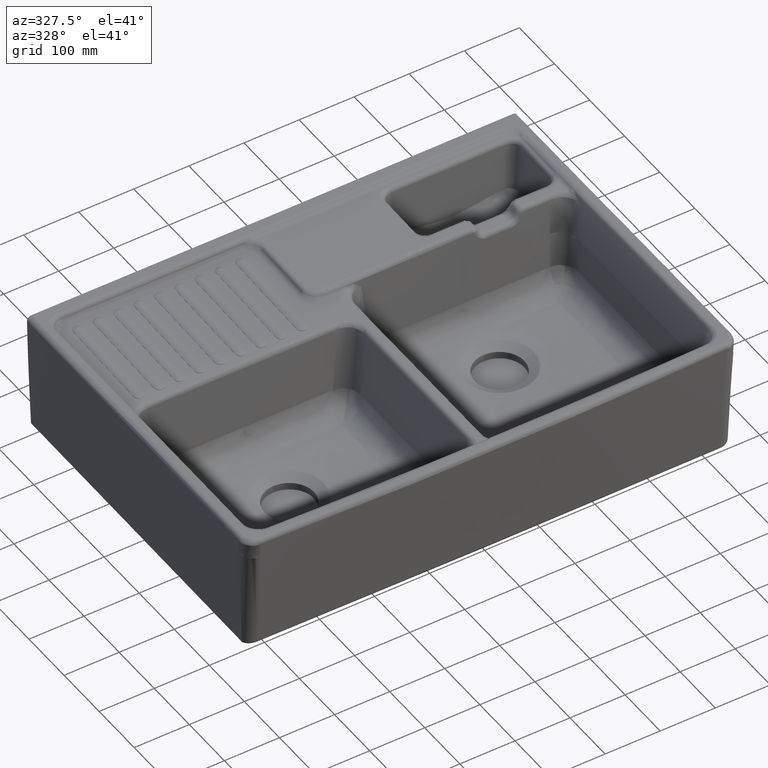
[diagram: clean part render]
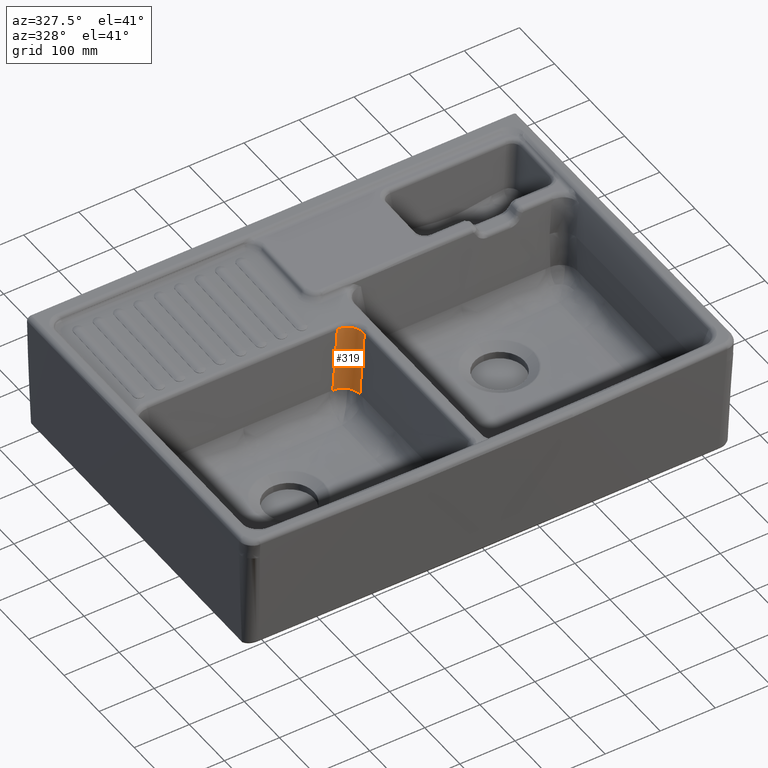
[diagram: same view with one face highlighted and labeled with its STEP entity id]
A machine part, auxiliary view. The second image highlights one B-rep face of the part: STEP entity #319.
In plain terms, the highlighted face is a freeform B-spline surface patch.
Its self-contained STEP definition (entity closure, byte-faithful):
#319=ADVANCED_FACE('',(#1178),#773,.T.);
#773=B_SPLINE_SURFACE_WITH_KNOTS('',3,3,((#18958,#18959,#18960,#18961),
(#18962,#18963,#18964,#18965),(#18966,#18967,#18968,#18969),(#18970,#18971,
#18972,#18973)),.UNSPECIFIED.,.F.,.F.,.F.,(4,4),(4,4),(0.,1.),(0.,1.),
 .UNSPECIFIED.);
#1178=FACE_OUTER_BOUND('',#1629,.T.);
#1629=EDGE_LOOP('',(#2679,#2680,#2681,#2682,#2683,#2684));
#2679=ORIENTED_EDGE('',*,*,#5537,.F.);
#2680=ORIENTED_EDGE('',*,*,#5535,.T.);
#2681=ORIENTED_EDGE('',*,*,#5510,.T.);
#2682=ORIENTED_EDGE('',*,*,#5538,.F.);
#2683=ORIENTED_EDGE('',*,*,#5495,.T.);
#2684=ORIENTED_EDGE('',*,*,#5539,.F.);
#4605=VERTEX_POINT('',#17971);
#4606=VERTEX_POINT('',#17972);
#4615=VERTEX_POINT('',#18199);
#4616=VERTEX_POINT('',#18204);
#4630=VERTEX_POINT('',#18896);
#4631=VERTEX_POINT('',#18928);
#5495=EDGE_CURVE('',#4605,#4606,#6690,.T.);
#5510=EDGE_CURVE('',#4616,#4615,#6705,.T.);
#5535=EDGE_CURVE('',#4630,#4616,#6730,.T.);
#5537=EDGE_CURVE('',#4630,#4631,#6732,.T.);
#5538=EDGE_CURVE('',#4605,#4615,#6733,.T.);
#5539=EDGE_CURVE('',#4631,#4606,#6734,.T.);
#6690=B_SPLINE_CURVE_WITH_KNOTS('',3,(#17956,#17957,#17958,#17959,#17960,
#17961,#17962,#17963,#17964,#17965,#17966,#17967,#17968,#17969,#17970),
 .UNSPECIFIED.,.F.,.F.,(4,2,2,2,1,1,1,2,4),(0.,0.5,0.749999999999999,0.874999999999999,
0.937499999999999,0.968749999999999,0.984374999999999,0.9921875,1.),
 .UNSPECIFIED.);
#6705=B_SPLINE_CURVE_WITH_KNOTS('',3,(#18200,#18201,#18202,#18203),
 .UNSPECIFIED.,.F.,.F.,(4,4),(0.,1.),.UNSPECIFIED.);
#6730=B_SPLINE_CURVE_WITH_KNOTS('',3,(#18892,#18893,#18894,#18895),
 .UNSPECIFIED.,.F.,.F.,(4,4),(0.,1.),.UNSPECIFIED.);
#6732=B_SPLINE_CURVE_WITH_KNOTS('',3,(#18924,#18925,#18926,#18927),
 .UNSPECIFIED.,.F.,.F.,(4,4),(0.,1.),.UNSPECIFIED.);
#6733=B_SPLINE_CURVE_WITH_KNOTS('',3,(#18929,#18930,#18931,#18932,#18933,
#18934,#18935,#18936,#18937,#18938,#18939,#18940,#18941,#18942,#18943,#18944,
#18945,#18946,#18947,#18948,#18949,#18950,#18951,#18952,#18953),
 .UNSPECIFIED.,.F.,.F.,(4,2,1,1,1,1,1,1,1,1,1,1,1,1,1,1,1,1,1,2,4),(0.,
0.000976562499999993,0.00195312499999999,0.00390624999999996,0.00781249999999983,
0.0156249999999997,0.0312499999999995,0.0624999999999995,0.124999999999999,
0.249999999999999,0.499999999999999,0.749999999999999,0.874999999999999,
0.937499999999999,0.968749999999999,0.984375,0.9921875,0.99609375,0.998046875,
0.9990234375,1.),.UNSPECIFIED.);
#6734=B_SPLINE_CURVE_WITH_KNOTS('',3,(#18954,#18955,#18956,#18957),
 .UNSPECIFIED.,.F.,.F.,(4,4),(0.,1.),.UNSPECIFIED.);
#17956=CARTESIAN_POINT('',(-11.9816618541531,24.5196525404761,-29.8552499752521));
#17957=CARTESIAN_POINT('',(-11.9631176926455,28.6276515578142,-29.7246262770236));
#17958=CARTESIAN_POINT('',(-12.7634699379411,32.4697937456265,-29.588011929685));
#17959=CARTESIAN_POINT('',(-14.8712600896982,37.6506893669688,-29.3990892218857));
#17960=CARTESIAN_POINT('',(-15.7255506101645,39.2810308250211,-29.338781407849));
#17961=CARTESIAN_POINT('',(-17.1985868818831,41.5623799171592,-29.2554324940351));
#17962=CARTESIAN_POINT('',(-17.721560677366,42.2954940896572,-29.2288348706643));
#17963=CARTESIAN_POINT('',(-18.5497212550908,43.3519790360296,-29.1911042471394));
#17964=CARTESIAN_POINT('',(-18.9747290792469,43.869427190551,-29.1727803718818));
#17965=CARTESIAN_POINT('',(-19.4887934678492,44.4537727294885,-29.1524346724839));
#17966=CARTESIAN_POINT('',(-19.7502704641983,44.7410545055455,-29.1425304263897));
#17967=CARTESIAN_POINT('',(-19.8632726791627,44.8631213443244,-29.138344438938));
#17968=CARTESIAN_POINT('',(-19.9388152142017,44.9442643862793,-29.1355669484181));
#17969=CARTESIAN_POINT('',(-19.9389593187087,44.9446466469244,-29.1355518065009));
#17970=CARTESIAN_POINT('',(-20.0149169926693,45.0253185531731,-29.1328002773995));
#17971=CARTESIAN_POINT('',(-11.9822460877944,24.5191564784086,-29.8551567258973));
#17972=CARTESIAN_POINT('',(-20.0149189975984,45.0253195176951,-29.1328000927668));
#18199=CARTESIAN_POINT('',(-25.4782996977863,16.0782760589866,-139.741500521571));
#18200=CARTESIAN_POINT('',(-34.4235641785402,37.3846714088545,-139.741706514232));
#18201=CARTESIAN_POINT('',(-28.7518832293266,31.8259727762333,-139.741450382458));
#18202=CARTESIAN_POINT('',(-25.4775541725458,24.2089491500503,-139.739827540752));
#18203=CARTESIAN_POINT('',(-25.4776878946513,16.0783075921577,-139.741224806561));
#18204=CARTESIAN_POINT('',(-34.4241405565794,37.3840934702988,-139.741467402368));
#18892=CARTESIAN_POINT('',(-55.4588470891157,45.9495770089479,-139.740802655105));
#18893=CARTESIAN_POINT('',(-46.9604158884011,45.949635894198,-139.739952513682));
#18894=CARTESIAN_POINT('',(-39.6374987116368,42.4948340456925,-139.741354926631));
#18895=CARTESIAN_POINT('',(-34.4235682538945,37.3846754030985,-139.741706513957));
#18896=CARTESIAN_POINT('',(-55.4590970530964,45.9490338628122,-139.740741436735));
#18924=CARTESIAN_POINT('',(-55.4588127051958,45.9486063881273,-139.740415337951));
#18925=CARTESIAN_POINT('',(-51.6153875817512,48.0779416224701,-102.827703204351));
#18926=CARTESIAN_POINT('',(-47.0621839387421,50.8665852014304,-65.9979462759032));
#18927=CARTESIAN_POINT('',(-41.7992017761685,54.3108029058694,-29.2508724763775));
#18928=CARTESIAN_POINT('',(-41.7992074686989,54.3113481982923,-29.2509463806587));
#18929=CARTESIAN_POINT('',(-11.9828266261929,24.5196559852972,-29.8550473634513));
#18930=CARTESIAN_POINT('',(-11.9929838309352,24.5128729024143,-29.9264967199078));
#18931=CARTESIAN_POINT('',(-11.9931508997496,24.5127614658831,-29.927676914676));
#18932=CARTESIAN_POINT('',(-12.0033053924192,24.5059808700196,-29.9991264526631));
#18933=CARTESIAN_POINT('',(-12.0185351191947,24.4958118622559,-30.1063008919544));
#18934=CARTESIAN_POINT('',(-12.0540570628191,24.4720973796961,-30.3563755097987));
#18935=CARTESIAN_POINT('',(-12.1250446086712,24.4247212234637,-30.8565284500646));
#18936=CARTESIAN_POINT('',(-12.2667943401997,24.3301801465482,-31.8568491482538));
#18937=CARTESIAN_POINT('',(-12.5493924058439,24.1419429349151,-33.8575498100512));
#18938=CARTESIAN_POINT('',(-13.1109832937906,23.7688482804395,-37.8591881536378));
#18939=CARTESIAN_POINT('',(-14.2197468666562,23.0361780466519,-45.8634125873191));
#18940=CARTESIAN_POINT('',(-16.379623360752,21.6249138797297,-61.875649773312));
#18941=CARTESIAN_POINT('',(-19.3005716801355,19.7633259288496,-84.7610828515235));
#18942=CARTESIAN_POINT('',(-22.0024047853426,18.1077429328388,-107.660886675759));
#18943=CARTESIAN_POINT('',(-23.7788295614678,17.0569874369373,-123.698272678507));
#18944=CARTESIAN_POINT('',(-24.6383494760906,16.5586478393132,-131.718843848082));
#18945=CARTESIAN_POINT('',(-25.0609390804983,16.3162375780827,-135.729598642049));
#18946=CARTESIAN_POINT('',(-25.2704416401233,16.1967223318629,-137.735093299722));
#18947=CARTESIAN_POINT('',(-25.3747449024948,16.137387179852,-138.737869938531));
#18948=CARTESIAN_POINT('',(-25.4267845347207,16.1078252216211,-139.239265584778));
#18949=CARTESIAN_POINT('',(-25.4527763517686,16.0930706469494,-139.489965239532));
#18950=CARTESIAN_POINT('',(-25.4639097022048,16.0867529158994,-139.597408341195));
#18951=CARTESIAN_POINT('',(-25.4713306025641,16.0825423525539,-139.669037162855));
#18952=CARTESIAN_POINT('',(-25.471455614546,16.082471232003,-139.670237486168));
#18953=CARTESIAN_POINT('',(-25.4788738189283,16.0782631552725,-139.741866487444));
#18954=CARTESIAN_POINT('',(-41.79921,54.31189,-29.25102));
#18955=CARTESIAN_POINT('',(-33.5017,54.3372,-28.98045));
#18956=CARTESIAN_POINT('',(-25.6744900000001,51.03614,-28.92783));
#18957=CARTESIAN_POINT('',(-20.01492,45.02532,-29.1328));
#18958=CARTESIAN_POINT('',(-30.74455,13.29754,-195.88184));
#18959=CARTESIAN_POINT('',(-30.79956,29.81392,-196.53632));
#18960=CARTESIAN_POINT('',(-44.1677,43.21853,-195.94766));
#18961=CARTESIAN_POINT('',(-60.63915,43.27369,-194.56544));
#18962=CARTESIAN_POINT('',(-24.42122,16.33067,-120.64831));
#18963=CARTESIAN_POINT('',(-24.52649,32.79532,-121.69781));
#18964=CARTESIAN_POINT('',(-37.85076,46.17214,-121.08992));
#18965=CARTESIAN_POINT('',(-54.2508,46.27769,-119.28786));
#18966=CARTESIAN_POINT('',(-15.17713,22.13715,-45.7824));
#18967=CARTESIAN_POINT('',(-15.36317,38.51356,-47.21552));
#18968=CARTESIAN_POINT('',(-28.62097,51.84141,-46.58875));
#18969=CARTESIAN_POINT('',(-44.91119,52.02823,-44.37682));
#18970=CARTESIAN_POINT('',(-3.11382,30.60314,28.31373));
#18971=CARTESIAN_POINT('',(-3.40541,46.85954,26.5227));
#18972=CARTESIAN_POINT('',(-16.57653,60.11954,27.16741));
#18973=CARTESIAN_POINT('',(-32.72396,60.4131,29.76311));